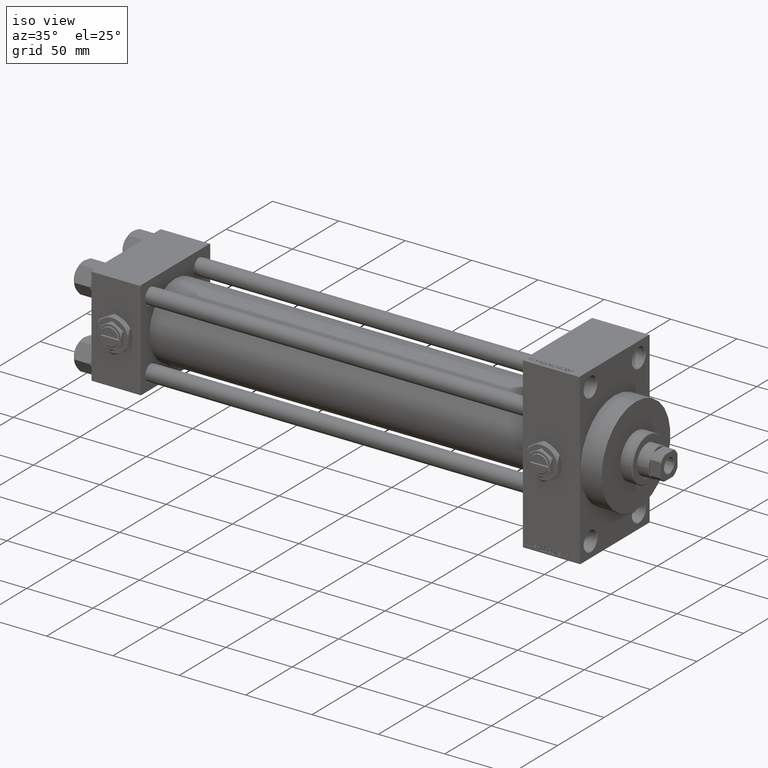
[diagram: clean part render]
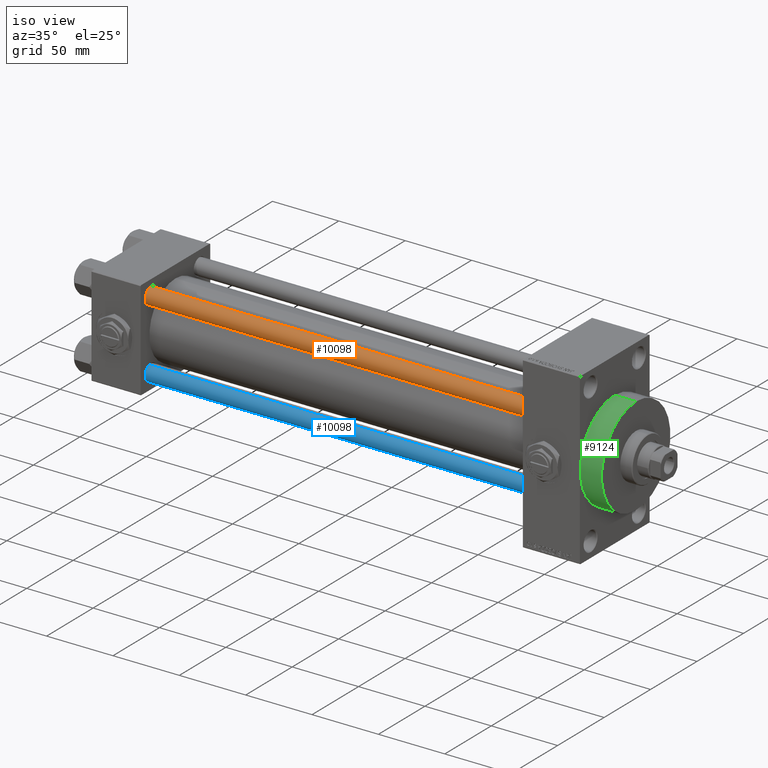
[diagram: same view with three faces highlighted in distinct colors, each labeled with its STEP entity id]
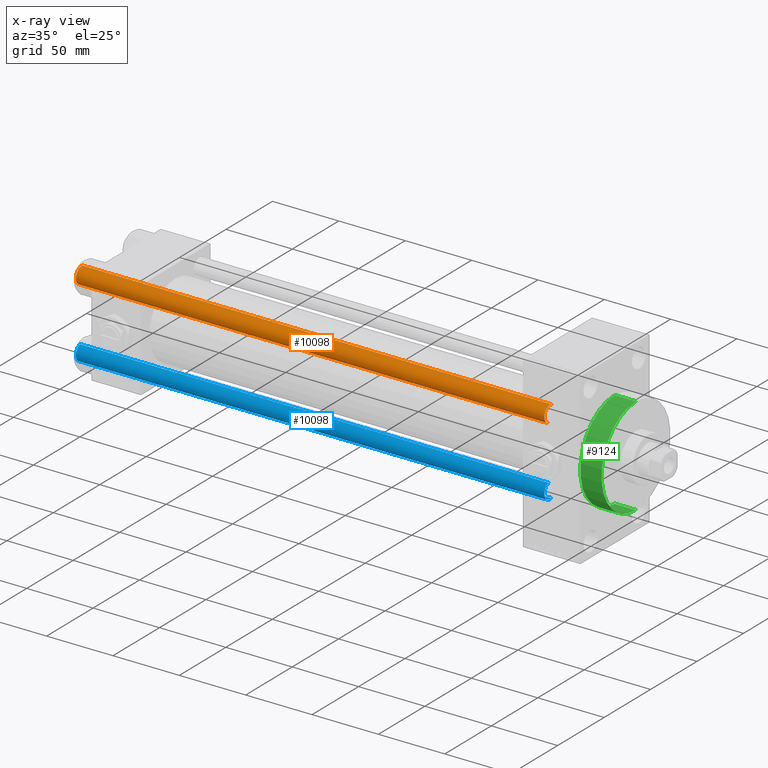
[diagram: x-ray of the same camera — body ghosted, the three highlighted faces saturated]
A machine part, iso view with three faces highlighted in distinct colors.
The next image is the same camera in x-ray (body ghosted, the three faces saturated) — at least one of them is partly hidden behind the body in this view.
Their STEP definitions:

[orange] entity #10098 — the highlighted cylindrical surface (edge-blend (fillet) strip) has radius 6 mm, axis along (1, 0, 0).
#177 = VERTEX_POINT ( 'NONE', #17227 ) ;
#1418 = DIRECTION ( 'NONE',  ( -0.000000000000000000, -0.000000000000000000, -1.000000000000000000 ) ) ;
#1474 = VECTOR ( 'NONE', #1418, 1000.000000000000000 ) ;
#1727 = LINE ( 'NONE', #2484, #32010 ) ;
#2484 = CARTESIAN_POINT ( 'NONE',  ( 6.000000000000000888, 7.347880794884120722E-16, 354.0000000000000000 ) ) ;
#4536 = CARTESIAN_POINT ( 'NONE',  ( -6.000000000000000888, 0.000000000000000000, 353.5000000000000000 ) ) ;
#5086 = VERTEX_POINT ( 'NONE', #4536 ) ;
#7265 = DIRECTION ( 'NONE',  ( -1.000000000000000000, 0.000000000000000000, 0.000000000000000000 ) ) ;
#10098 = ADVANCED_FACE ( 'NONE', ( #14502 ), #29694, .T. ) ;
#10766 = DIRECTION ( 'NONE',  ( -0.000000000000000000, -0.000000000000000000, -1.000000000000000000 ) ) ;
#11495 = DIRECTION ( 'NONE',  ( 1.000000000000000000, 0.000000000000000000, 0.000000000000000000 ) ) ;
#11940 = AXIS2_PLACEMENT_3D ( 'NONE', #17240, #28182, #24458 ) ;
#13941 = DIRECTION ( 'NONE',  ( -0.000000000000000000, -0.000000000000000000, -1.000000000000000000 ) ) ;
#14502 = FACE_OUTER_BOUND ( 'NONE', #44036, .T. ) ;
#15287 = VERTEX_POINT ( 'NONE', #28297 ) ;
#16568 = EDGE_CURVE ( 'NONE', #177, #38805, #1727, .T. ) ;
#17227 = CARTESIAN_POINT ( 'NONE',  ( 6.000000000000000888, 7.347880794884120722E-16, 353.5000000000000000 ) ) ;
#17240 = CARTESIAN_POINT ( 'NONE',  ( 0.000000000000000000, 0.000000000000000000, 0.5000000000000559552 ) ) ;
#17370 = CARTESIAN_POINT ( 'NONE',  ( -6.000000000000000888, 0.000000000000000000, 354.0000000000000000 ) ) ;
#17513 = ORIENTED_EDGE ( 'NONE', *, *, #48358, .T. ) ;
#18966 = DIRECTION ( 'NONE',  ( 0.000000000000000000, 0.000000000000000000, -1.000000000000000000 ) ) ;
#21413 = AXIS2_PLACEMENT_3D ( 'NONE', #45636, #18966, #11495 ) ;
#24458 = DIRECTION ( 'NONE',  ( 1.000000000000000000, 0.000000000000000000, 0.000000000000000000 ) ) ;
#28182 = DIRECTION ( 'NONE',  ( -0.000000000000000000, -0.000000000000000000, 1.000000000000000000 ) ) ;
#28297 = CARTESIAN_POINT ( 'NONE',  ( -6.000000000000000888, 0.000000000000000000, 0.5000000000000559552 ) ) ;
#29694 = CYLINDRICAL_SURFACE ( 'NONE', #37847, 6.000000000000000888 ) ;
#30205 = ORIENTED_EDGE ( 'NONE', *, *, #42662, .F. ) ;
#30615 = ORIENTED_EDGE ( 'NONE', *, *, #16568, .T. ) ;
#32010 = VECTOR ( 'NONE', #13941, 1000.000000000000000 ) ;
#36034 = LINE ( 'NONE', #17370, #1474 ) ;
#37847 = AXIS2_PLACEMENT_3D ( 'NONE', #44905, #10766, #7265 ) ;
#38805 = VERTEX_POINT ( 'NONE', #43022 ) ;
#41318 = CIRCLE ( 'NONE', #21413, 6.000000000000000888 ) ;
#42662 = EDGE_CURVE ( 'NONE', #5086, #15287, #36034, .T. ) ;
#43022 = CARTESIAN_POINT ( 'NONE',  ( 6.000000000000000888, 7.347880794884120722E-16, 0.5000000000000559552 ) ) ;
#43691 = EDGE_CURVE ( 'NONE', #5086, #177, #41318, .T. ) ;
#44036 = EDGE_LOOP ( 'NONE', ( #48336, #30615, #17513, #30205 ) ) ;
#44572 = CIRCLE ( 'NONE', #11940, 6.000000000000000888 ) ;
#44905 = CARTESIAN_POINT ( 'NONE',  ( 0.000000000000000000, 0.000000000000000000, 354.0000000000000000 ) ) ;
#45636 = CARTESIAN_POINT ( 'NONE',  ( 0.000000000000000000, 0.000000000000000000, 353.5000000000000000 ) ) ;
#48336 = ORIENTED_EDGE ( 'NONE', *, *, #43691, .T. ) ;
#48358 = EDGE_CURVE ( 'NONE', #38805, #15287, #44572, .T. ) ;

[blue] entity #10098 — the highlighted cylindrical surface (edge-blend (fillet) strip) has radius 6 mm, axis along (-1, 0, 0).
#177 = VERTEX_POINT ( 'NONE', #17227 ) ;
#1418 = DIRECTION ( 'NONE',  ( -0.000000000000000000, -0.000000000000000000, -1.000000000000000000 ) ) ;
#1474 = VECTOR ( 'NONE', #1418, 1000.000000000000000 ) ;
#1727 = LINE ( 'NONE', #2484, #32010 ) ;
#2484 = CARTESIAN_POINT ( 'NONE',  ( 6.000000000000000888, 7.347880794884120722E-16, 354.0000000000000000 ) ) ;
#4536 = CARTESIAN_POINT ( 'NONE',  ( -6.000000000000000888, 0.000000000000000000, 353.5000000000000000 ) ) ;
#5086 = VERTEX_POINT ( 'NONE', #4536 ) ;
#7265 = DIRECTION ( 'NONE',  ( -1.000000000000000000, 0.000000000000000000, 0.000000000000000000 ) ) ;
#10098 = ADVANCED_FACE ( 'NONE', ( #14502 ), #29694, .T. ) ;
#10766 = DIRECTION ( 'NONE',  ( -0.000000000000000000, -0.000000000000000000, -1.000000000000000000 ) ) ;
#11495 = DIRECTION ( 'NONE',  ( 1.000000000000000000, 0.000000000000000000, 0.000000000000000000 ) ) ;
#11940 = AXIS2_PLACEMENT_3D ( 'NONE', #17240, #28182, #24458 ) ;
#13941 = DIRECTION ( 'NONE',  ( -0.000000000000000000, -0.000000000000000000, -1.000000000000000000 ) ) ;
#14502 = FACE_OUTER_BOUND ( 'NONE', #44036, .T. ) ;
#15287 = VERTEX_POINT ( 'NONE', #28297 ) ;
#16568 = EDGE_CURVE ( 'NONE', #177, #38805, #1727, .T. ) ;
#17227 = CARTESIAN_POINT ( 'NONE',  ( 6.000000000000000888, 7.347880794884120722E-16, 353.5000000000000000 ) ) ;
#17240 = CARTESIAN_POINT ( 'NONE',  ( 0.000000000000000000, 0.000000000000000000, 0.5000000000000559552 ) ) ;
#17370 = CARTESIAN_POINT ( 'NONE',  ( -6.000000000000000888, 0.000000000000000000, 354.0000000000000000 ) ) ;
#17513 = ORIENTED_EDGE ( 'NONE', *, *, #48358, .T. ) ;
#18966 = DIRECTION ( 'NONE',  ( 0.000000000000000000, 0.000000000000000000, -1.000000000000000000 ) ) ;
#21413 = AXIS2_PLACEMENT_3D ( 'NONE', #45636, #18966, #11495 ) ;
#24458 = DIRECTION ( 'NONE',  ( 1.000000000000000000, 0.000000000000000000, 0.000000000000000000 ) ) ;
#28182 = DIRECTION ( 'NONE',  ( -0.000000000000000000, -0.000000000000000000, 1.000000000000000000 ) ) ;
#28297 = CARTESIAN_POINT ( 'NONE',  ( -6.000000000000000888, 0.000000000000000000, 0.5000000000000559552 ) ) ;
#29694 = CYLINDRICAL_SURFACE ( 'NONE', #37847, 6.000000000000000888 ) ;
#30205 = ORIENTED_EDGE ( 'NONE', *, *, #42662, .F. ) ;
#30615 = ORIENTED_EDGE ( 'NONE', *, *, #16568, .T. ) ;
#32010 = VECTOR ( 'NONE', #13941, 1000.000000000000000 ) ;
#36034 = LINE ( 'NONE', #17370, #1474 ) ;
#37847 = AXIS2_PLACEMENT_3D ( 'NONE', #44905, #10766, #7265 ) ;
#38805 = VERTEX_POINT ( 'NONE', #43022 ) ;
#41318 = CIRCLE ( 'NONE', #21413, 6.000000000000000888 ) ;
#42662 = EDGE_CURVE ( 'NONE', #5086, #15287, #36034, .T. ) ;
#43022 = CARTESIAN_POINT ( 'NONE',  ( 6.000000000000000888, 7.347880794884120722E-16, 0.5000000000000559552 ) ) ;
#43691 = EDGE_CURVE ( 'NONE', #5086, #177, #41318, .T. ) ;
#44036 = EDGE_LOOP ( 'NONE', ( #48336, #30615, #17513, #30205 ) ) ;
#44572 = CIRCLE ( 'NONE', #11940, 6.000000000000000888 ) ;
#44905 = CARTESIAN_POINT ( 'NONE',  ( 0.000000000000000000, 0.000000000000000000, 354.0000000000000000 ) ) ;
#45636 = CARTESIAN_POINT ( 'NONE',  ( 0.000000000000000000, 0.000000000000000000, 353.5000000000000000 ) ) ;
#48336 = ORIENTED_EDGE ( 'NONE', *, *, #43691, .T. ) ;
#48358 = EDGE_CURVE ( 'NONE', #38805, #15287, #44572, .T. ) ;

[green] entity #9124 — the highlighted cylindrical surface (partial cylindrical patch) has radius 37 mm, axis along (-1, -0, -0).
#18 = DIRECTION ( 'NONE',  ( -1.000000000000000000, -0.000000000000000000, -0.000000000000000000 ) ) ;
#740 = DIRECTION ( 'NONE',  ( 0.000000000000000000, 0.000000000000000000, 1.000000000000000000 ) ) ;
#4245 = FACE_OUTER_BOUND ( 'NONE', #31118, .T. ) ;
#4271 = CARTESIAN_POINT ( 'NONE',  ( 367.9999999999999432, 0.000000000000000000, 0.000000000000000000 ) ) ;
#5866 = CARTESIAN_POINT ( 'NONE',  ( 383.9999999999999432, 0.000000000000000000, 0.000000000000000000 ) ) ;
#6831 = LINE ( 'NONE', #40455, #36994 ) ;
#7127 = EDGE_CURVE ( 'NONE', #39840, #39019, #30688, .T. ) ;
#7383 = CARTESIAN_POINT ( 'NONE',  ( 367.9999999999999432, 0.000000000000000000, 37.00000000000000000 ) ) ;
#8952 = CARTESIAN_POINT ( 'NONE',  ( 383.9999999999999432, 4.531193156845206793E-15, -37.00000000000000000 ) ) ;
#9032 = ORIENTED_EDGE ( 'NONE', *, *, #23467, .T. ) ;
#9124 = ADVANCED_FACE ( 'NONE', ( #4245 ), #34610, .T. ) ;
#9603 = DIRECTION ( 'NONE',  ( 0.000000000000000000, 0.000000000000000000, -1.000000000000000000 ) ) ;
#10882 = CARTESIAN_POINT ( 'NONE',  ( 383.9999999999999432, 0.000000000000000000, 37.00000000000000000 ) ) ;
#11746 = DIRECTION ( 'NONE',  ( 0.000000000000000000, 0.000000000000000000, -1.000000000000000000 ) ) ;
#14016 = CIRCLE ( 'NONE', #26727, 37.00000000000000000 ) ;
#17887 = VERTEX_POINT ( 'NONE', #7383 ) ;
#19479 = ORIENTED_EDGE ( 'NONE', *, *, #7127, .F. ) ;
#19705 = DIRECTION ( 'NONE',  ( 1.000000000000000000, 0.000000000000000000, 0.000000000000000000 ) ) ;
#23399 = CARTESIAN_POINT ( 'NONE',  ( 383.9999999999999432, 0.000000000000000000, 0.000000000000000000 ) ) ;
#23467 = EDGE_CURVE ( 'NONE', #39840, #17887, #6831, .T. ) ;
#24175 = ORIENTED_EDGE ( 'NONE', *, *, #35545, .F. ) ;
#24295 = DIRECTION ( 'NONE',  ( 1.000000000000000000, 0.000000000000000000, 0.000000000000000000 ) ) ;
#25424 = EDGE_CURVE ( 'NONE', #17887, #25603, #14016, .T. ) ;
#25603 = VERTEX_POINT ( 'NONE', #39595 ) ;
#26727 = AXIS2_PLACEMENT_3D ( 'NONE', #4271, #19705, #11746 ) ;
#28383 = AXIS2_PLACEMENT_3D ( 'NONE', #23399, #18, #740 ) ;
#30688 = CIRCLE ( 'NONE', #41826, 37.00000000000000000 ) ;
#31118 = EDGE_LOOP ( 'NONE', ( #24175, #19479, #9032, #37778 ) ) ;
#34610 = CYLINDRICAL_SURFACE ( 'NONE', #28383, 37.00000000000000000 ) ;
#35545 = EDGE_CURVE ( 'NONE', #39019, #25603, #43089, .T. ) ;
#36994 = VECTOR ( 'NONE', #44476, 1000.000000000000000 ) ;
#37778 = ORIENTED_EDGE ( 'NONE', *, *, #25424, .T. ) ;
#38861 = VECTOR ( 'NONE', #39085, 1000.000000000000000 ) ;
#39019 = VERTEX_POINT ( 'NONE', #41495 ) ;
#39085 = DIRECTION ( 'NONE',  ( -1.000000000000000000, -0.000000000000000000, -0.000000000000000000 ) ) ;
#39595 = CARTESIAN_POINT ( 'NONE',  ( 367.9999999999999432, 4.531193156845206793E-15, -37.00000000000000000 ) ) ;
#39840 = VERTEX_POINT ( 'NONE', #10882 ) ;
#40455 = CARTESIAN_POINT ( 'NONE',  ( 383.9999999999999432, 0.000000000000000000, 37.00000000000000000 ) ) ;
#41495 = CARTESIAN_POINT ( 'NONE',  ( 383.9999999999999432, 4.531193156845206793E-15, -37.00000000000000000 ) ) ;
#41826 = AXIS2_PLACEMENT_3D ( 'NONE', #5866, #24295, #9603 ) ;
#43089 = LINE ( 'NONE', #8952, #38861 ) ;
#44476 = DIRECTION ( 'NONE',  ( -1.000000000000000000, -0.000000000000000000, -0.000000000000000000 ) ) ;